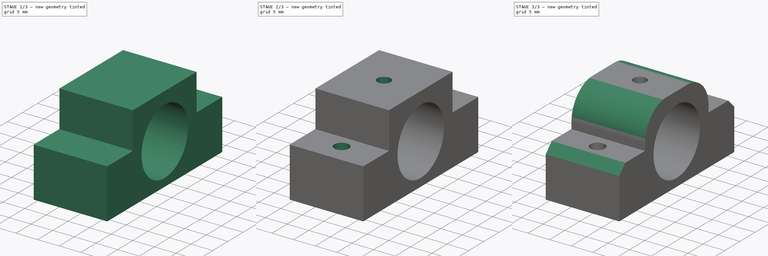
[diagram: build sequence overview — one tinted view per stage of 3, left to right]
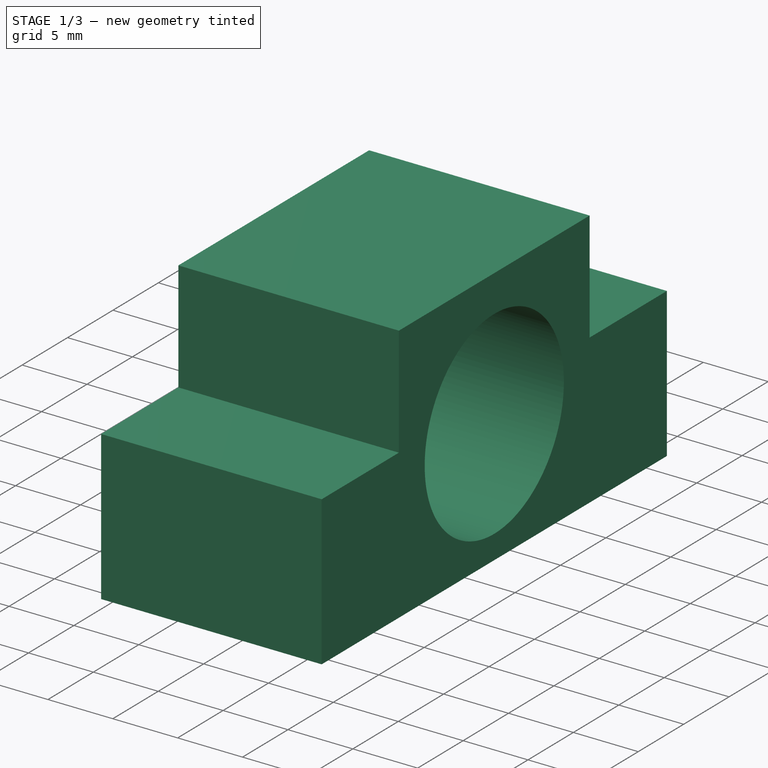
[diagram: stage 1 of 3 — iso view after this stage's code; geometry added in this stage tinted green]
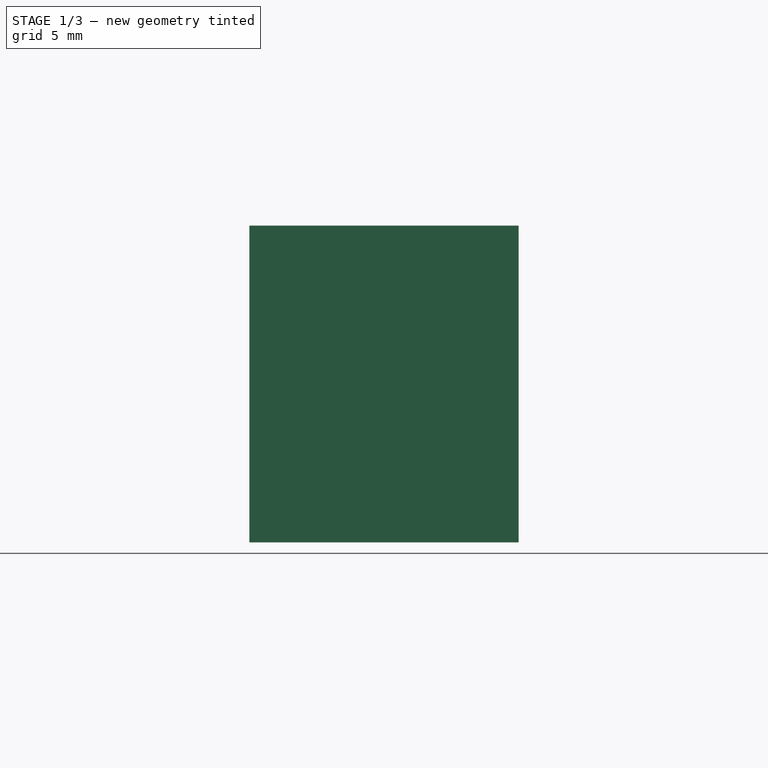
[diagram: stage 1 of 3 — front view after this stage's code; geometry added in this stage tinted green]
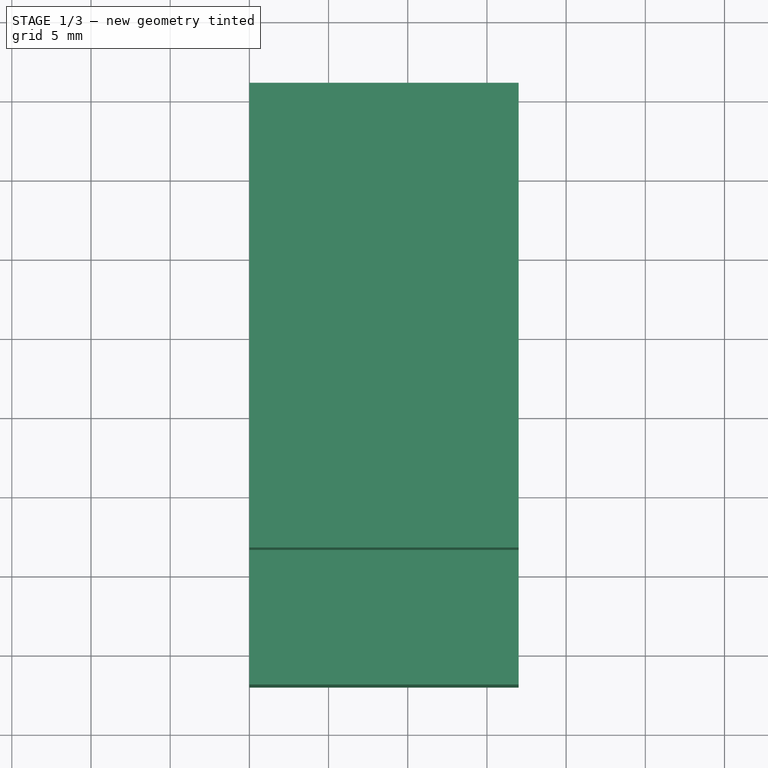
[diagram: stage 1 of 3 — top view after this stage's code; geometry added in this stage tinted green]
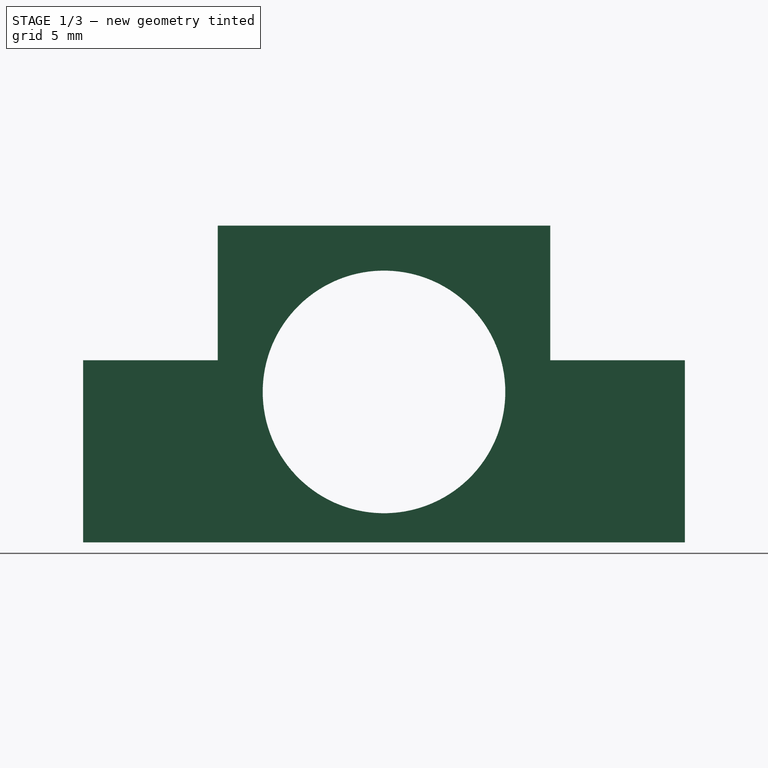
[diagram: stage 1 of 3 — right view after this stage's code; geometry added in this stage tinted green]
FCSTD DOCUMENT  (FreeCAD 0.16R6706 (Git))
Label: side-mnt-top
License: All rights reserved
LicenseURL: http://en.wikipedia.org/wiki/All_rights_reserved
objects: Sketcher::SketchObject×3, PartDesign::Pocket×3, Part::Box×1, PartDesign::Fillet×1, PartDesign::Chamfer×1
note: 12 computed .brp shape members not serialized (recipe doc carries the construction recipe); baked Part::Feature solids carry a one-line shape summary decoded from their .brp

FEATURE [Part::Box] Box  label="Cube"
  Height = 20
  Length = 17
  Placement = pos=(0,38,0) rot=(0,0,1;0rad)
  Width = 38
FEATURE [Sketcher::SketchObject] Sketch  label="bushing cutout"
  Placement = pos=(17,38,0) rot=(0.57735,0.57735,0.57735;2.0944rad)
  Support = -> Box [Face2]
  sketch-geometry (9):
    g0: Circle CenterX=19 CenterY=9.5 CenterZ=0 NormalX=0 NormalY=0 NormalZ=1 Radius=7.66
    g1: LineSegment StartX=8.5 StartY=20 StartZ=0 EndX=0 EndY=20 EndZ=0
    g2: LineSegment StartX=0 StartY=20 StartZ=0 EndX=0 EndY=11.5 EndZ=0
    g3: LineSegment StartX=0 StartY=11.5 StartZ=0 EndX=8.5 EndY=11.5 EndZ=0
    g4: LineSegment StartX=8.5 StartY=11.5 StartZ=0 EndX=8.5 EndY=20 EndZ=0
    g5: LineSegment StartX=29.5 StartY=20 StartZ=0 EndX=38 EndY=20 EndZ=0
    g6: LineSegment StartX=38 StartY=20 StartZ=0 EndX=38 EndY=11.5 EndZ=0
    g7: LineSegment StartX=38 StartY=11.5 StartZ=0 EndX=29.5 EndY=11.5 EndZ=0
    g8: LineSegment StartX=29.5 StartY=11.5 StartZ=0 EndX=29.5 EndY=20 EndZ=0
  constraints (27):
    c: DistanceX(g-2,g0) = 19
    c: Radius(g0) = 7.66
    c: DistanceY(g-1,g0) = 9.5
    c: Coincident(g1,g2)
    c: Coincident(g2,g3)
    c: Coincident(g3,g4)
    c: Coincident(g4,g1)
    c: Horizontal(g1)
    c: Horizontal(g3)
    c: Vertical(g2)
    c: Vertical(g4)
    c: Coincident(g5,g6)
    c: Coincident(g6,g7)
    c: Coincident(g7,g8)
    c: Coincident(g8,g5)
    c: Horizontal(g5)
    c: Horizontal(g7)
    c: Vertical(g6)
    c: Vertical(g8)
    c: DistanceX(g-2,g1) = 0
    c: Distance(g1) = 8.5
    c: Distance(g4) = 8.5
    c: DistanceY(g-1,g2) = 11.5
    c: Equal(g5,g1)
    c: Equal(g6,g4)
    c: DistanceY(g-1,g7) = 11.5
    c: DistanceX(g-2,g5) = 29.5
FEATURE [PartDesign::Pocket] Pocket
  Length = 5
  Placement = pos=(0,38,0) rot=(0,0,1;0rad)
  Sketch = -> Sketch
  Type = 1
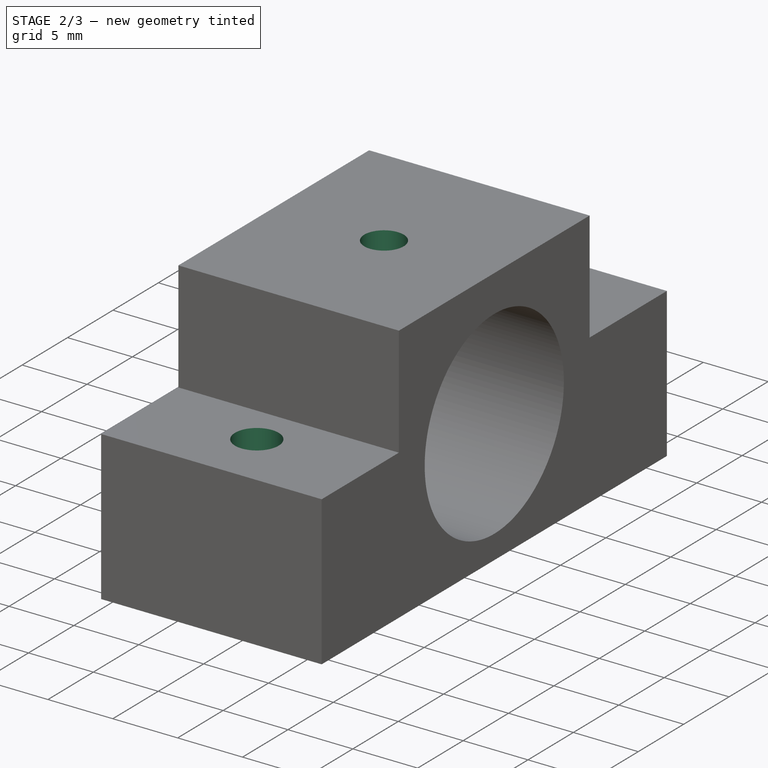
[diagram: stage 2 of 3 — iso view after this stage's code; geometry added in this stage tinted green]
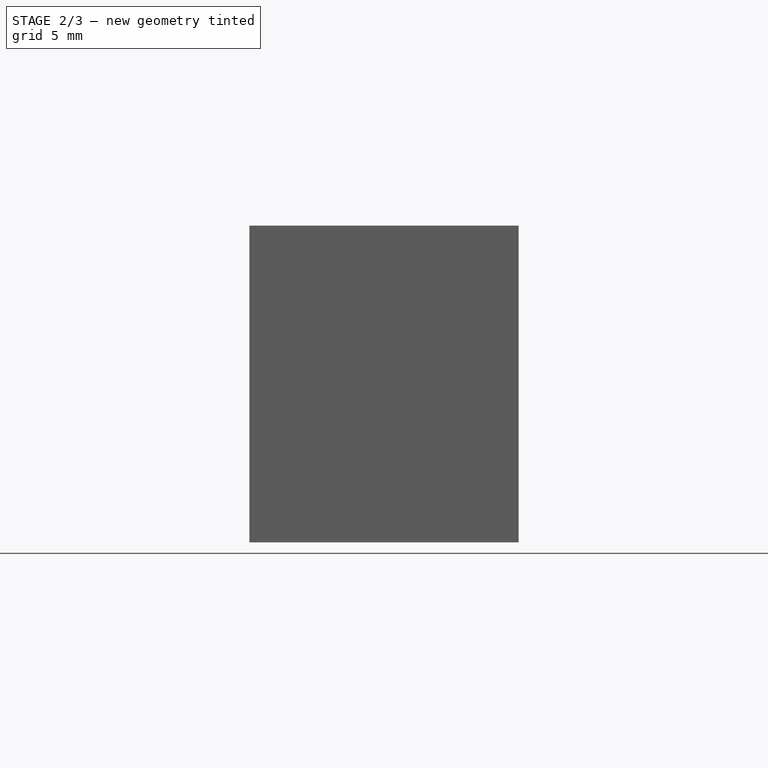
[diagram: stage 2 of 3 — front view after this stage's code; geometry added in this stage tinted green]
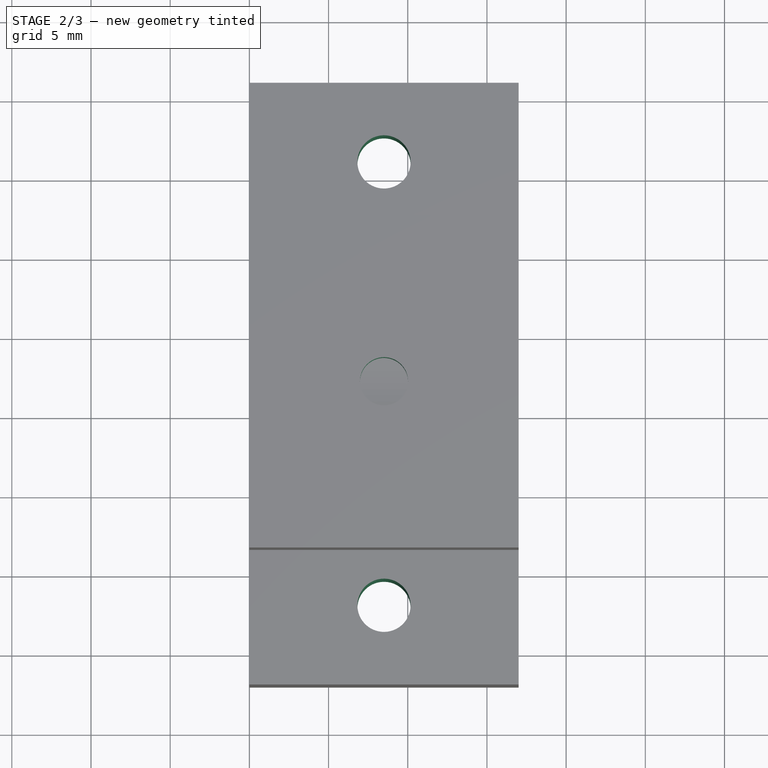
[diagram: stage 2 of 3 — top view after this stage's code; geometry added in this stage tinted green]
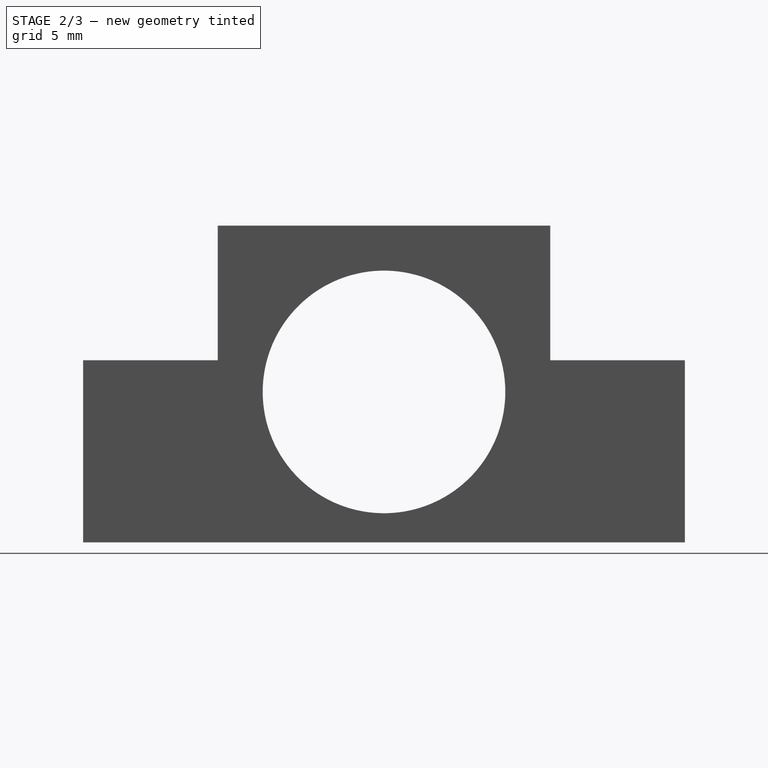
[diagram: stage 2 of 3 — right view after this stage's code; geometry added in this stage tinted green]
FEATURE [Sketcher::SketchObject] Sketch005  label="top holes"
  Placement = pos=(0,38,20) rot=(0,0,1;0rad)
  Support = -> Pocket [Face5]
  sketch-geometry (1):
    g0: Circle CenterX=8.5 CenterY=19 CenterZ=0 NormalX=0 NormalY=0 NormalZ=1 Radius=1.52
  constraints (3):
    c: Radius(g0) = 1.52
    c: DistanceX(g-2,g0) = 8.5
    c: DistanceY(g-1,g0) = 19
FEATURE [PartDesign::Pocket] Pocket001
  Length = 5
  Placement = pos=(0,38,0) rot=(0,0,1;0rad)
  Sketch = -> Sketch005
  Type = 0
FEATURE [Sketcher::SketchObject] Sketch006  label="bottom holes"
  Placement = pos=(0,38,0) rot=(1,0,0;3.14159rad)
  Support = -> Pocket001 [Face9]
  sketch-geometry (4):
    g0: Circle CenterX=8.5 CenterY=-33 CenterZ=0 NormalX=0 NormalY=0 NormalZ=1 Radius=1.68
    g1: Circle CenterX=8.5 CenterY=-5 CenterZ=0 NormalX=0 NormalY=0 NormalZ=1 Radius=1.68
    g2: LineSegment StartX=22.6 StartY=-1.5 StartZ=0 EndX=22.6 EndY=-1.5001 EndZ=0
    g3: LineSegment StartX=24.4 StartY=-1.5 StartZ=0 EndX=24.4 EndY=-1.5001 EndZ=0
  constraints (6):
    c: Radius(g0) = 1.68
    c: DistanceY(g-1,g1) = -5
    c: DistanceX(g-2,g1) = 8.5
    c: DistanceX(g-2,g0) = 8.5
    c: Distance(g0,g1) = 28
    c: Vertical(g2)
FEATURE [PartDesign::Pocket] Pocket002
  Length = 13
  Placement = pos=(0,38,0) rot=(0,0,1;0rad)
  Sketch = -> Sketch006
  Type = 0
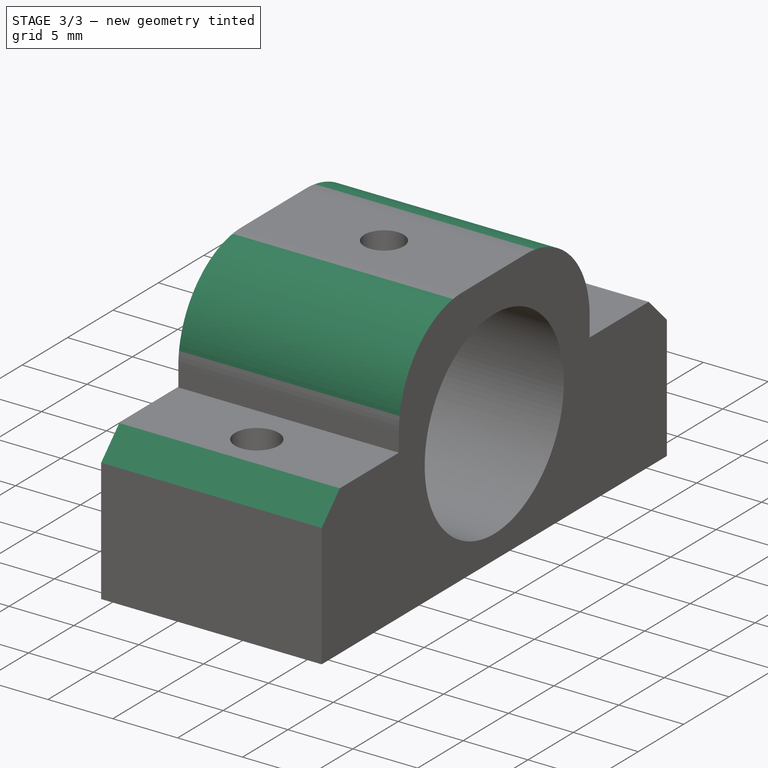
[diagram: stage 3 of 3 — iso view after this stage's code; geometry added in this stage tinted green]
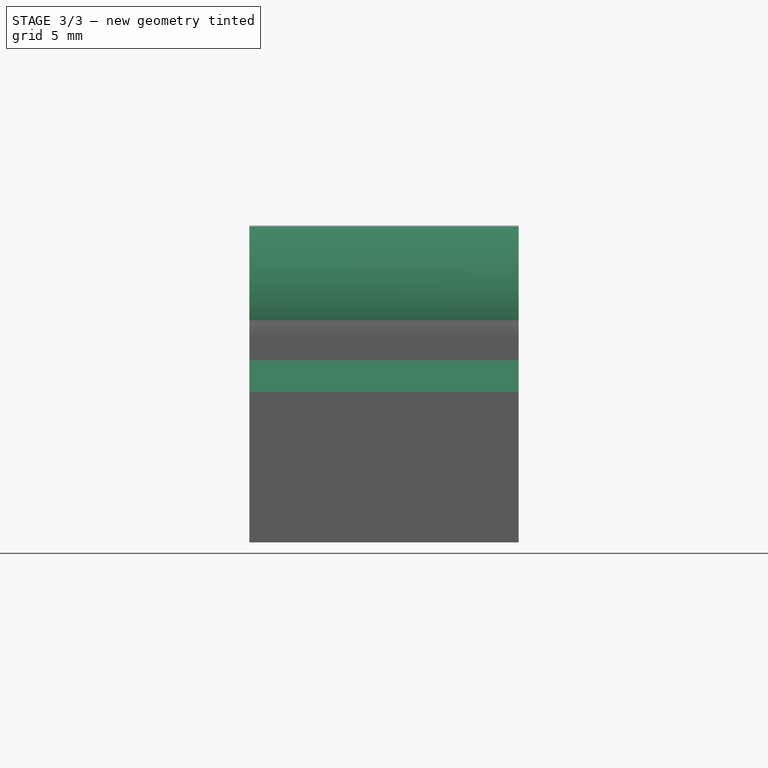
[diagram: stage 3 of 3 — front view after this stage's code; geometry added in this stage tinted green]
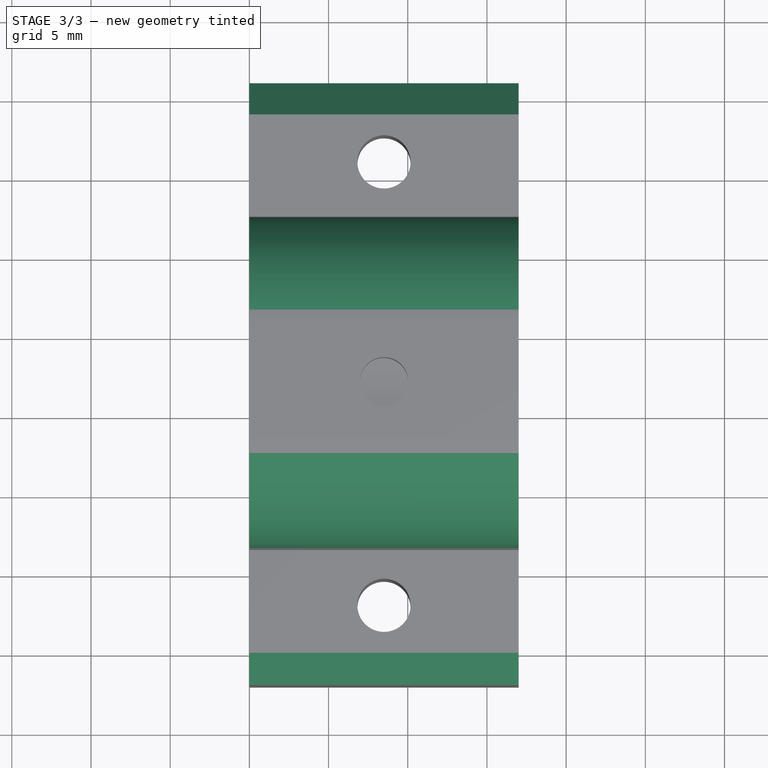
[diagram: stage 3 of 3 — top view after this stage's code; geometry added in this stage tinted green]
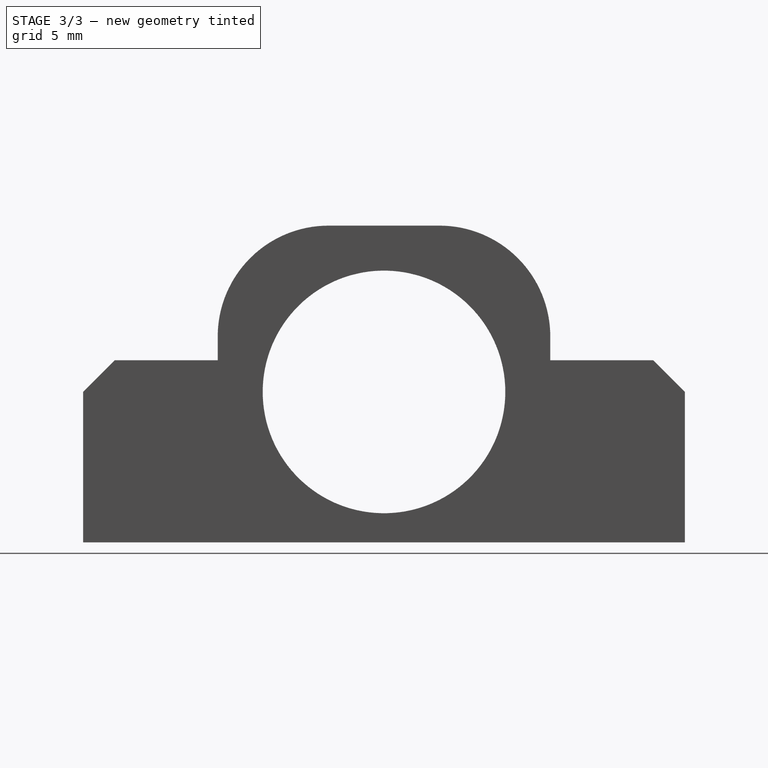
[diagram: stage 3 of 3 — right view after this stage's code; geometry added in this stage tinted green]
FEATURE [PartDesign::Fillet] Fillet
  Base = -> Pocket002 [Edge17,Edge18]
  Placement = pos=(0,38,0) rot=(0,0,1;0rad)
  Radius = 7
FEATURE [PartDesign::Chamfer] Chamfer
  Base = -> Fillet [Edge18,Edge34]
  Placement = pos=(0,38,0) rot=(0,0,1;0rad)
  Size = 2
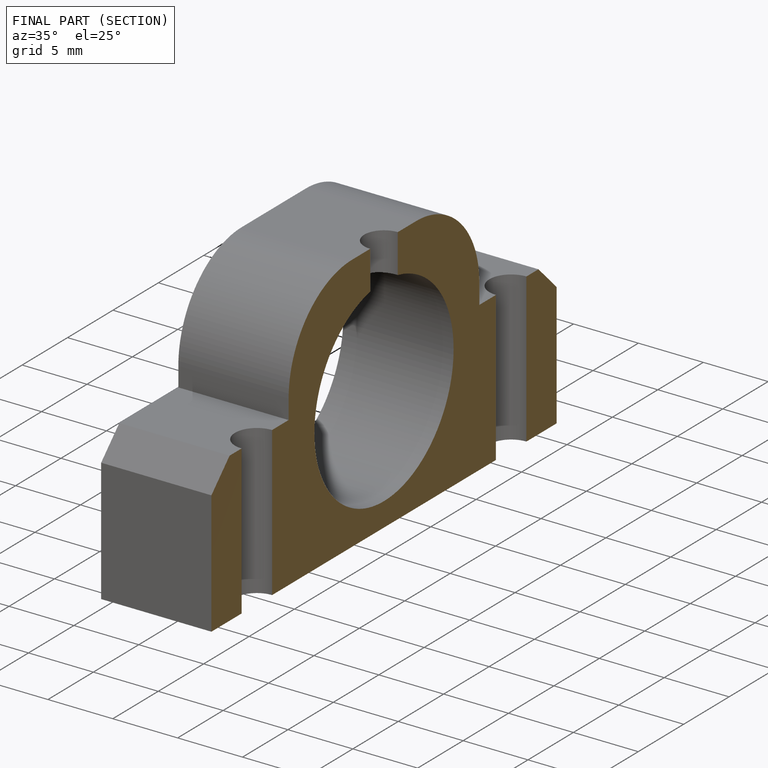
[diagram: finished part — half-section view (interior)]
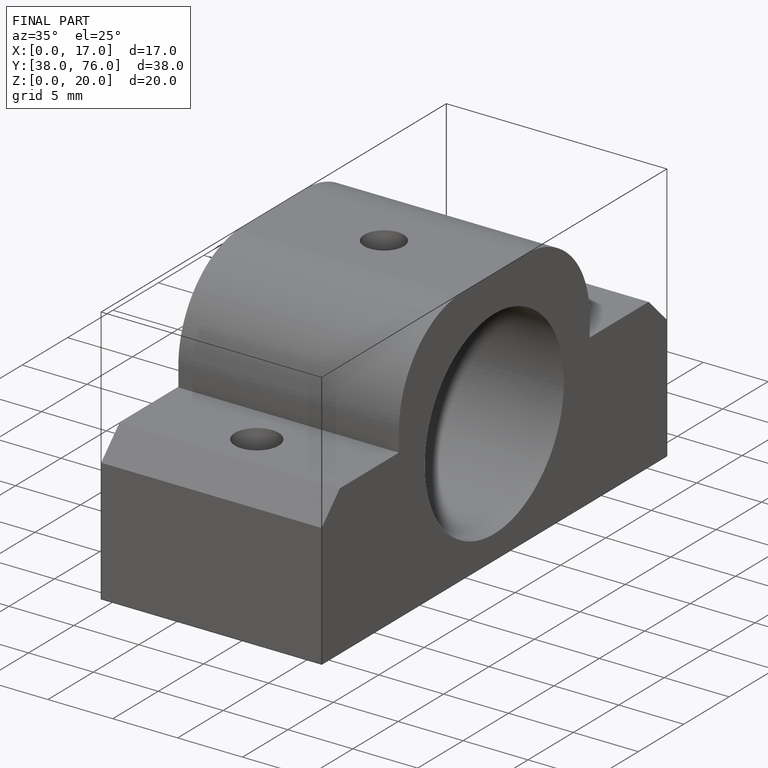
[diagram: finished part — iso view with bounding-box wireframe]
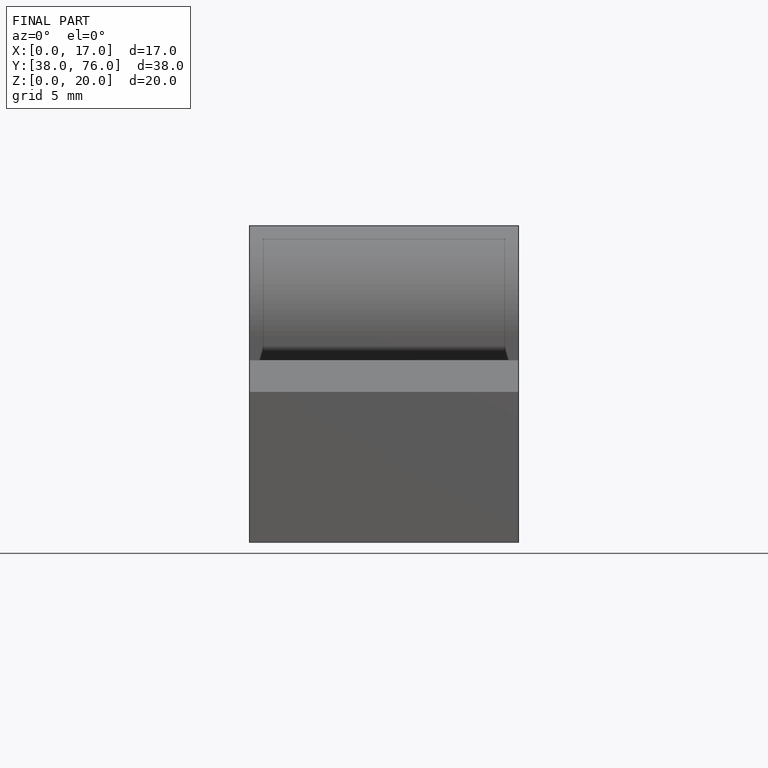
[diagram: finished part — front view with bounding-box wireframe]
